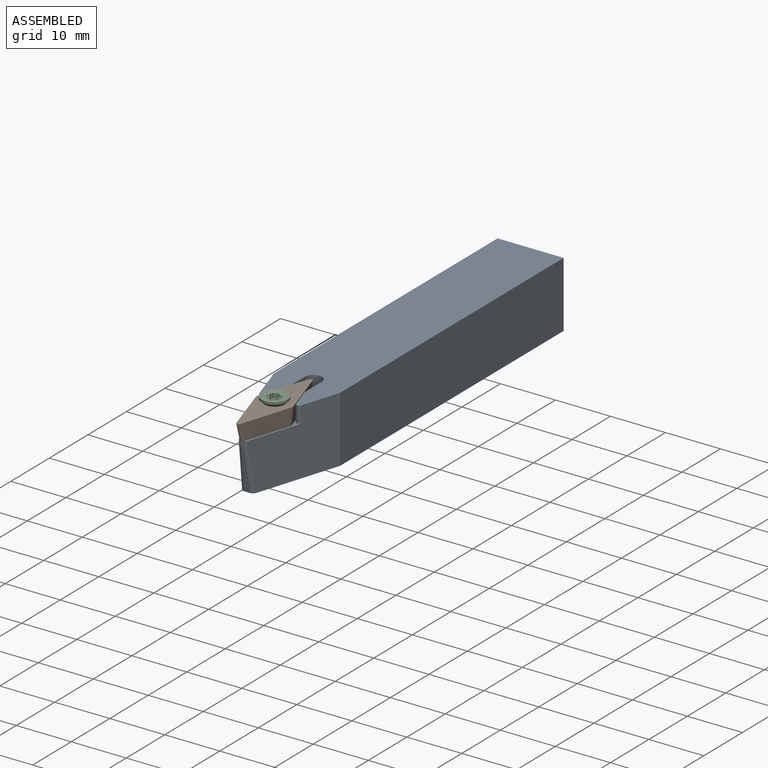
[diagram: assembled view]
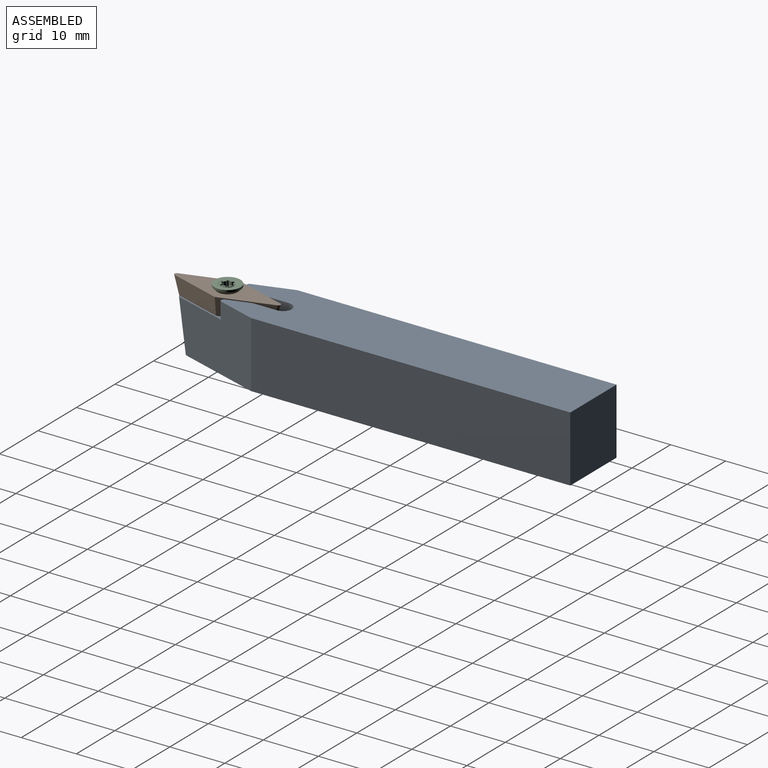
[diagram: assembled view, second angle]
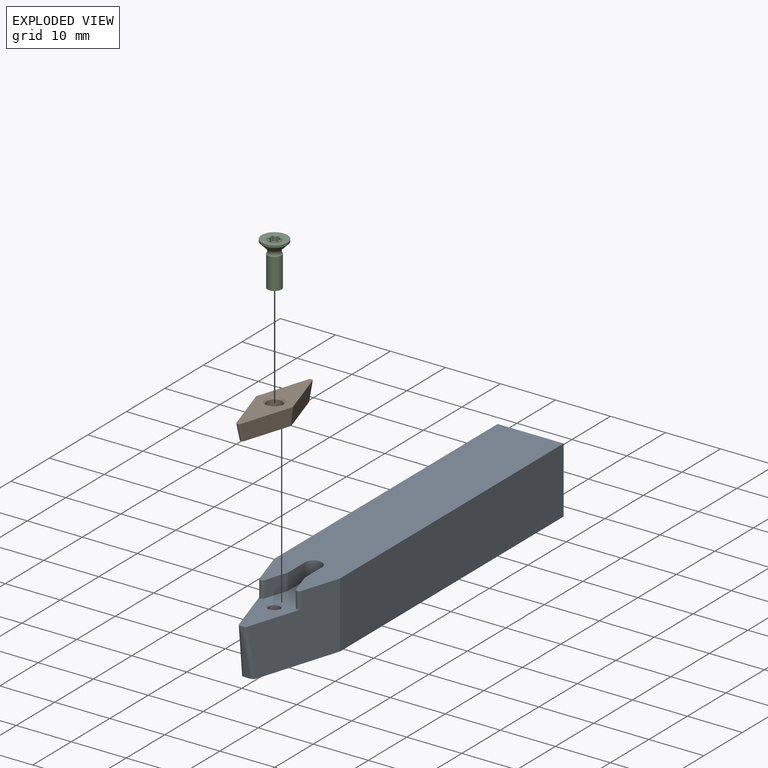
[diagram: exploded view]
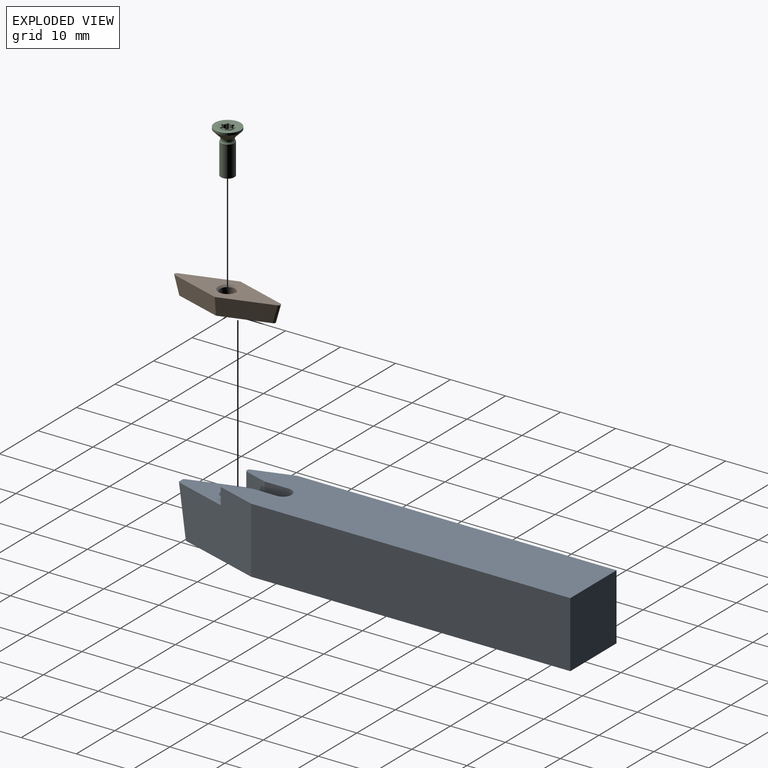
[diagram: exploded view, second angle]
ASSEMBLY  parts=3 mates=2
PART A: 24 faces, bbox 12x75.2x12.1 mm
  f0: plane 1.01x1mm, normal (0,-1,0), area 0.7mm2, adj f10,f21,f22,f23
  f1: plane 73.59x12mm, normal (0,0,-1), area 806.6mm2, adj f2,f3,f4,f6,f8,f21,f22,f23
  f2: plane 16.58x12mm, normal (0.95,-0.3,0), area 170.8mm2, adj f1,f5,f6,f10,f19,f22
  f3: plane 16.58x12mm, normal (-0.95,-0.3,0), area 170.8mm2, adj f1,f4,f5,f10,f20,f23
  f4: plane 58.03x12mm, normal (-1,0,0), area 696.3mm2, adj f1,f3,f5,f8
  f5: plane 65.34x12mm, normal (0,0,1), area 729.3mm2, adj f2,f3,f4,f6,f7,f8,f9,f14
  f6: plane 58.03x12mm, normal (1,0,0), area 696.3mm2, adj f1,f2,f5,f8
  f7: plane 4.06x3mm, normal (-0.95,-0.3,0), area 12.8mm2, adj f5,f10,f17,f19
  f8: plane 12x12mm, normal (0,1,0), area 144mm2, adj f1,f4,f5,f6
  f9: plane 4.06x3mm, normal (0.95,-0.3,0), area 12.8mm2, adj f5,f10,f18,f20
  f10: plane 20.15x7.62mm, normal (0,0,1), area 74.7mm2, adj f0,f2,f3,f7,f9,f13,f14,f15
  f11: cone r=0mm half-angle=59deg, axis (0,0,1), area 3.9mm2, adj f12
  f12: cylinder r=1.03mm len=6.55mm, axis (0,0,1), area 42.2mm2, adj f11,f13
  f13: cone r=1.03mm half-angle=45deg, axis (0,0,1), area 2.6mm2, adj f10,f12
  f14: plane 4.37x3mm, normal (-1,0,0), area 13.1mm2, adj f5,f10,f15,f17
  f15: cylinder r=1.55mm len=3.1mm, axis (0,0,1), area 14.6mm2, adj f5,f10,f14,f16
  f16: plane 4.37x3mm, normal (1,0,0), area 13.1mm2, adj f5,f10,f15,f18
  f17: cylinder r=0.5mm len=3mm, axis (0,0,1), area 0.5mm2, adj f5,f7,f10,f14
  f18: cylinder r=0.5mm len=3mm, axis (0,0,-1), area 0.5mm2, adj f5,f9,f10,f16
  f19: cylinder r=0.5mm len=3mm, axis (0,0,1), area 3.8mm2, adj f2,f5,f7,f10
  f20: cylinder r=0.5mm len=3mm, axis (0,0,-1), area 3.8mm2, adj f3,f5,f9,f10
  f21: plane 8x1.41mm, normal (0,-0.98,-0.17), area 4.6mm2, adj f0,f1,f22,f23
  f22: cylinder r=0.8mm len=9.22mm, axis (0.05,0.17,-0.98), area 8.9mm2, adj f0,f1,f2,f10,f21
  f23: cylinder r=0.8mm len=9.22mm, axis (0.05,-0.17,0.98), area 8.9mm2, adj f0,f1,f3,f10,f21
PART B: 10 faces, bbox 6.7x19.3x3.3 mm
  f0: plane 9.35x3.18mm, normal (-0.95,-0.3,-0.09), area 29.7mm2, adj f3,f4,f5,f8
  f1: plane 9.35x3.18mm, normal (0.95,-0.3,-0.09), area 29.7mm2, adj f2,f4,f5,f8
  f2: plane 9.35x3.18mm, normal (0.95,0.3,-0.09), area 29.7mm2, adj f1,f4,f5,f9
  f3: plane 9.35x3.18mm, normal (-0.95,0.3,-0.09), area 29.7mm2, adj f0,f4,f5,f9
  f4: plane 17.43x6.08mm, normal (0,0,-1), area 51.8mm2, adj f0,f1,f2,f3,f6,f8,f9
  f5: plane 19.28x6.66mm, normal (0,0,1), area 60.6mm2, adj f0,f1,f2,f3,f7,f8,f9
  f6: cylinder r=1.4mm len=2.88mm, axis (0,0,-1), area 25.3mm2, adj f4,f7
  f7: cone r=1.4mm half-angle=45deg, axis (0,0,1), area 4.1mm2, adj f5,f6
  f8: cylinder r=0.4mm len=3.33mm, axis (0,-0.28,0.96), area 3.3mm2, adj f0,f1,f4,f5
  f9: cylinder r=0.4mm len=3.33mm, axis (0,0.28,0.96), area 3.3mm2, adj f2,f3,f4,f5
PART C: 34 faces, bbox 4.7x4.7x8 mm
  f0: plane 4.7x4.7mm, normal (0,0,1), area 9.6mm2, adj f7,f21
  f1: plane 2.5x2.5mm, normal (0,0,-1), area 4.9mm2, adj f2
  f2: cylinder r=1.25mm len=5.6mm, axis (0,0,1), area 44mm2, adj f1,f3
  f3: torus R=1.65mm, axis (0,0,1), area 3.2mm2, adj f2,f4
  f4: cylinder r=1.09mm len=2.17mm, axis (0,0,1), area 0.7mm2, adj f3,f5
  f5: torus R=1.65mm, axis (0,0,1), area 3.2mm2, adj f4,f6
  f6: cone r=1.25mm half-angle=45deg, axis (0,0,1), area 17.6mm2, adj f5,f7
  f7: cylinder r=2.35mm len=4.7mm, axis (0,0,1), area 5.9mm2, adj f0,f6
  f8: cone r=1.2mm half-angle=70deg, axis (0,0,1), area 3.3mm2, adj f9,f10,f11,f12,f13,f14,f15,f16
  f9: cylinder r=0.2mm len=1.05mm, axis (0,0,1), area 0.5mm2, adj f8,f15,f20,f21,f22,f23,f31,f32
  f10: cylinder r=0.2mm len=1.05mm, axis (0,0,1), area 0.5mm2, adj f8,f15,f16,f21,f22,f24,f30,f32
  f11: cylinder r=0.2mm len=1.05mm, axis (0,0,1), area 0.5mm2, adj f8,f16,f17,f21,f24,f25,f29,f30
  f12: cylinder r=0.2mm len=1.05mm, axis (0,0,1), area 0.5mm2, adj f8,f17,f18,f21,f25,f26,f28,f29
  f13: cylinder r=0.2mm len=1.05mm, axis (0,0,1), area 0.5mm2, adj f8,f18,f19,f21,f26,f27,f28,f33
  f14: cylinder r=0.2mm len=1.05mm, axis (0,0,1), area 0.5mm2, adj f8,f19,f20,f21,f23,f27,f31,f33
  f15: cylinder r=0.45mm len=1.13mm, axis (0,0,1), area 0.9mm2, adj f8,f9,f10,f32
  f16: cylinder r=0.45mm len=1.13mm, axis (0,0,1), area 0.9mm2, adj f8,f10,f11,f30
  f17: cylinder r=0.45mm len=1.13mm, axis (0,0,1), area 0.9mm2, adj f8,f11,f12,f29
  f18: cylinder r=0.45mm len=1.13mm, axis (0,0,1), area 0.9mm2, adj f8,f12,f13,f28
  f19: cylinder r=0.45mm len=1.13mm, axis (0,0,1), area 0.9mm2, adj f8,f13,f14,f33
  f20: cylinder r=0.45mm len=1.13mm, axis (0,0,1), area 0.9mm2, adj f8,f9,f14,f31
  f21: cone r=1.57mm half-angle=75.9deg, axis (0,0,1), area 3.5mm2, adj f0,f9,f10,f11,f12,f13,f14,f22
  f22: cylinder r=1.18mm len=0.86mm, axis (0,0,1), area 0.1mm2, adj f9,f10,f21,f32
  f23: cylinder r=1.18mm len=0.86mm, axis (0,0,1), area 0.1mm2, adj f9,f14,f21,f31
  f24: cylinder r=1.18mm len=0.99mm, axis (0,0,1), area 0.1mm2, adj f10,f11,f21,f30
  f25: cylinder r=1.18mm len=0.86mm, axis (0,0,1), area 0.1mm2, adj f11,f12,f21,f29
  f26: cylinder r=1.18mm len=0.86mm, axis (0,0,1), area 0.1mm2, adj f12,f13,f21,f28
  f27: cylinder r=1.18mm len=0.99mm, axis (0,0,1), area 0.1mm2, adj f13,f14,f21,f33
  f28: plane 0.86x0.51mm, normal (0,0,1), area 0.2mm2, adj f12,f13,f18,f26
  f29: plane 0.86x0.51mm, normal (0,0,1), area 0.2mm2, adj f11,f12,f17,f25
  f30: plane 0.99x0.34mm, normal (0,0,1), area 0.2mm2, adj f10,f11,f16,f24
  f31: plane 0.86x0.51mm, normal (0,0,1), area 0.2mm2, adj f9,f14,f20,f23
  f32: plane 0.86x0.51mm, normal (0,0,1), area 0.2mm2, adj f9,f10,f15,f22
  f33: plane 0.99x0.34mm, normal (0,0,1), area 0.2mm2, adj f13,f14,f19,f27
PLACE A t=(0,0,-3)mm
PLACE B t=(0,8.5,3.18)mm
PLACE C t=(0,8.5,4.12)mm
MATE fastened C.f8 <-> B.f6  axis (0,0,1) through (0,8.5,3.18)mm
MATE fastened A.f11 <-> B.f6  axis (0,0,1) through (0,8.5,0)mm
